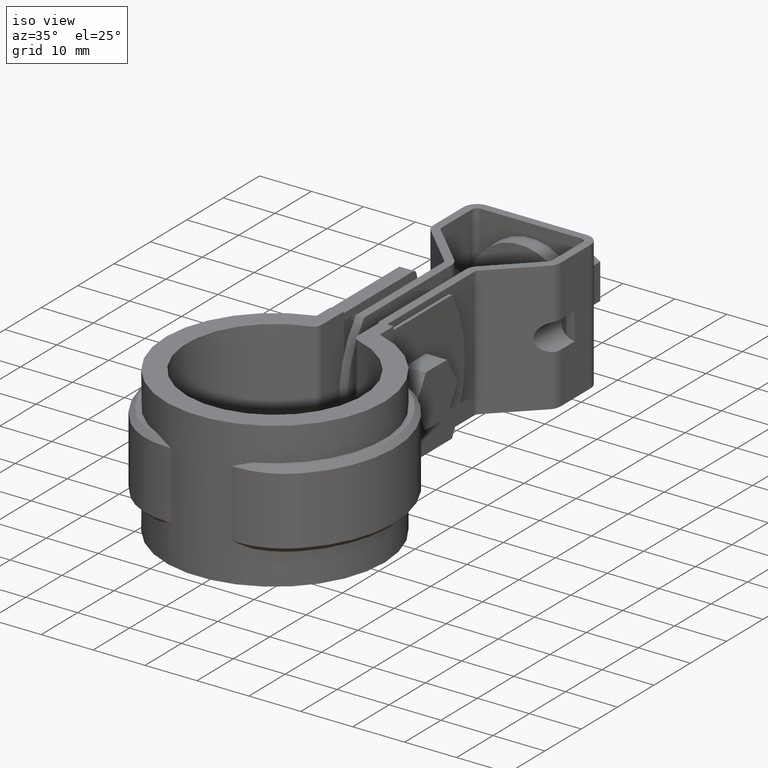
[diagram: clean part render]
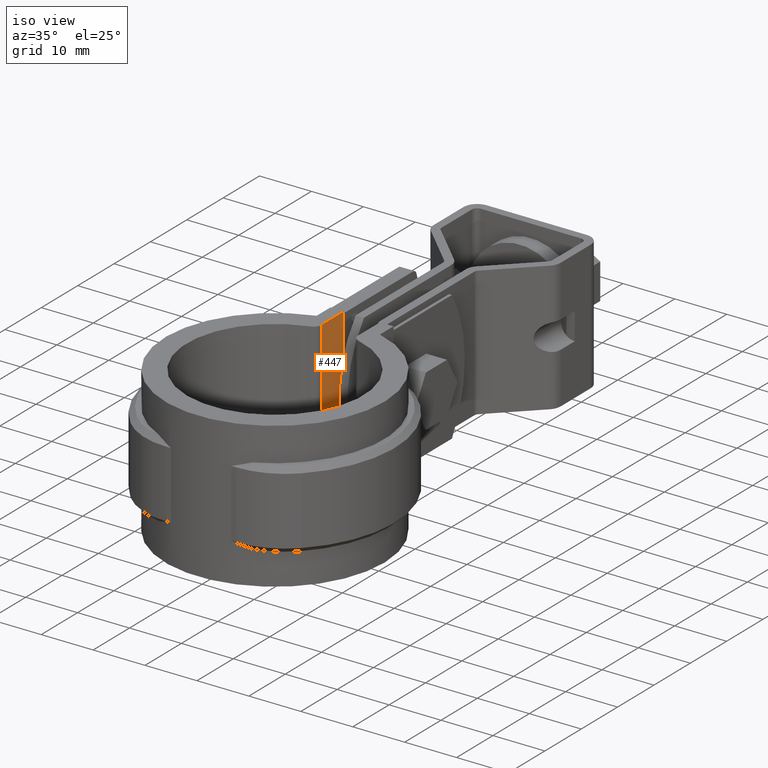
[diagram: same view with one face highlighted and labeled with its STEP entity id]
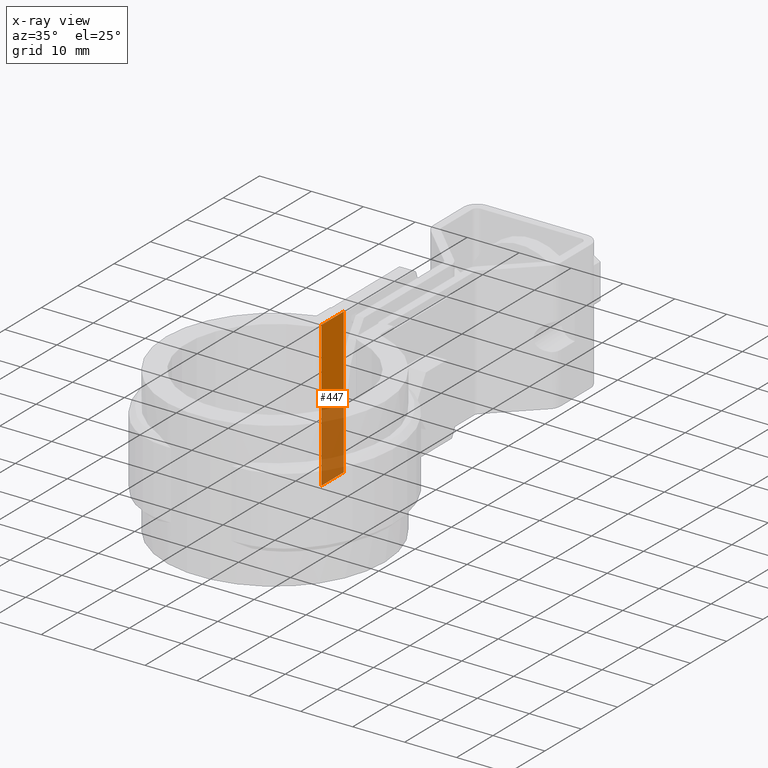
[diagram: x-ray of the same camera — body ghosted, the highlighted face saturated]
A machine part, iso view. The second image highlights one B-rep face of the part: STEP entity #447.
The next image is the same camera in x-ray: the body ghosted, the highlighted face saturated — about 44% of this face is hidden behind the body in this view.
In plain terms, the highlighted planar face has unit normal (1, -0, 0).
Its self-contained STEP definition (entity closure, byte-faithful):
#447 = ADVANCED_FACE( '', ( #870 ), #871, .T. );
#870 = FACE_OUTER_BOUND( '', #1963, .T. );
#871 = PLANE( '', #1964 );
#1963 = EDGE_LOOP( '', ( #4086, #4087, #4088, #4089 ) );
#1964 = AXIS2_PLACEMENT_3D( '', #4090, #4091, #4092 );
#4086 = ORIENTED_EDGE( '', *, *, #6259, .T. );
#4087 = ORIENTED_EDGE( '', *, *, #6274, .T. );
#4088 = ORIENTED_EDGE( '', *, *, #6427, .F. );
#4089 = ORIENTED_EDGE( '', *, *, #6428, .T. );
#4090 = CARTESIAN_POINT( '', ( -3.50000000000000, 16.6306952650814, -26.5000000000000 ) );
#4091 = DIRECTION( '', ( 1.00000000000000, -6.07153216591882E-017, 0.000000000000000 ) );
#4092 = DIRECTION( '', ( -6.07153216591882E-017, -1.00000000000000, 0.000000000000000 ) );
#6259 = EDGE_CURVE( '', #7280, #7278, #7281, .T. );
#6274 = EDGE_CURVE( '', #7278, #7306, #7308, .T. );
#6427 = EDGE_CURVE( '', #7569, #7306, #7570, .T. );
#6428 = EDGE_CURVE( '', #7569, #7280, #7571, .F. );
#7278 = VERTEX_POINT( '', #9617 );
#7280 = VERTEX_POINT( '', #9620 );
#7281 = LINE( '', #9621, #9622 );
#7306 = VERTEX_POINT( '', #9661 );
#7308 = LINE( '', #9664, #9665 );
#7569 = VERTEX_POINT( '', #10747 );
#7570 = LINE( '', #10748, #10749 );
#7571 = LINE( '', #10750, #10751 );
#9617 = CARTESIAN_POINT( '', ( -3.50000000000000, 23.9443584449549, -26.5000000000000 ) );
#9620 = CARTESIAN_POINT( '', ( -3.50000000000000, 17.8115131305569, -26.5000000000000 ) );
#9621 = CARTESIAN_POINT( '', ( -3.50000000000000, 16.6306952650814, -26.5000000000000 ) );
#9622 = VECTOR( '', #12478, 1000.00000000000 );
#9661 = CARTESIAN_POINT( '', ( -3.50000000000000, 23.9443584449549, 1.50000000000000 ) );
#9664 = CARTESIAN_POINT( '', ( -3.50000000000000, 23.9443584449549, -26.5000000000000 ) );
#9665 = VECTOR( '', #12497, 1000.00000000000 );
#10747 = CARTESIAN_POINT( '', ( -3.50000000000000, 17.8115131305569, 1.50000000000000 ) );
#10748 = CARTESIAN_POINT( '', ( -3.50000000000000, 16.6306952650814, 1.50000000000000 ) );
#10749 = VECTOR( '', #12668, 1000.00000000000 );
#10750 = CARTESIAN_POINT( '', ( -3.50000000000000, 17.8115131305569, -26.5000000000000 ) );
#10751 = VECTOR( '', #12669, 1000.00000000000 );
#12478 = DIRECTION( '', ( 6.07153216591883E-017, 1.00000000000000, 0.000000000000000 ) );
#12497 = DIRECTION( '', ( 0.000000000000000, 0.000000000000000, 1.00000000000000 ) );
#12668 = DIRECTION( '', ( 6.07153216591883E-017, 1.00000000000000, 0.000000000000000 ) );
#12669 = DIRECTION( '', ( 0.000000000000000, 0.000000000000000, 1.00000000000000 ) );